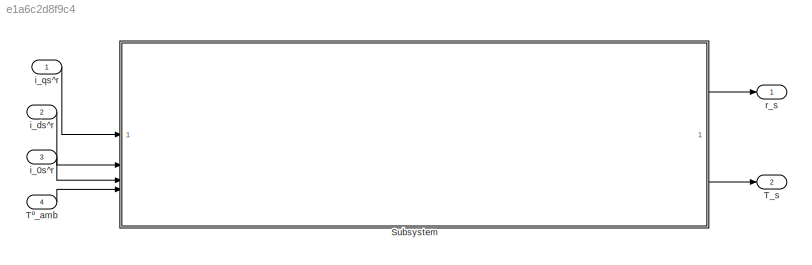
MODEL slx_e1a6c2d8f9c4
KIND model
CONFIG AbsTol = auto
CONFIG EnableMultiTasking = off
CONFIG FixedStep = auto
CONFIG MaxStep = auto
CONFIG MinStep = auto
CONFIG RelTol = 1e-3
CONFIG SampleTimeConstraint = Unconstrained
CONFIG SolverName = VariableStepAuto
CONFIG StartTime = 0.0
CONFIG StopTime = 10.0
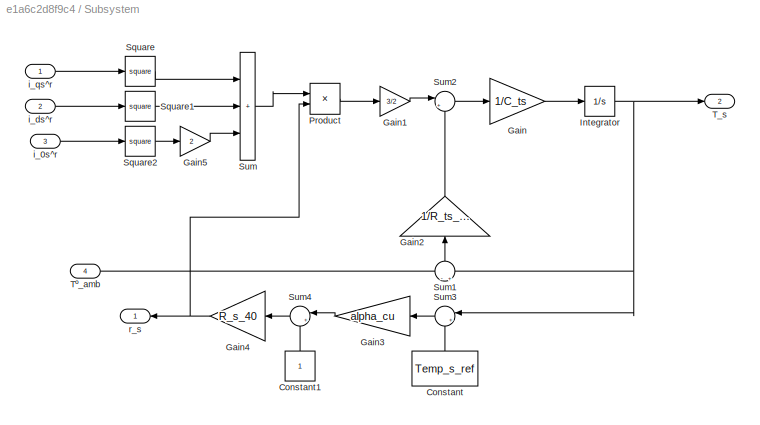
BLOCK [SubSystem] Subsystem
BLOCK [Constant] Subsystem/Constant
  NameLocation = right
  Value = Temp_s_ref
BLOCK [Constant] Subsystem/Constant1
  NameLocation = right
BLOCK [Gain] Subsystem/Gain
  Gain = 1/C_ts
BLOCK [Gain] Subsystem/Gain1
  Gain = 3/2
BLOCK [Gain] Subsystem/Gain2
  Gain = 1/R_ts_amb
  NameLocation = right
BLOCK [Gain] Subsystem/Gain3
  Gain = alpha_cu
  NameLocation = top
BLOCK [Gain] Subsystem/Gain4
  Gain = R_s_40
  NameLocation = top
BLOCK [Gain] Subsystem/Gain5
  Gain = 2
BLOCK [Integrator] Subsystem/Integrator
  InitialCondition = 40
BLOCK [Product] Subsystem/Product
BLOCK [Math] Subsystem/Square
  Operator = square
BLOCK [Math] Subsystem/Square1
  Operator = square
BLOCK [Math] Subsystem/Square2
  Operator = square
BLOCK [Sum] Subsystem/Sum
  IconShape = rectangular
  Inputs = +++
BLOCK [Sum] Subsystem/Sum1
  Inputs = -|+
  NameLocation = right
BLOCK [Sum] Subsystem/Sum2
  Inputs = |+-
BLOCK [Sum] Subsystem/Sum3
  Inputs = |+-
  NameLocation = top
BLOCK [Sum] Subsystem/Sum4
  Inputs = |++
  NameLocation = top
BLOCK [Outport] Subsystem/T_s
  Port = 2
BLOCK [Inport] Subsystem/Tº_amb
  Port = 4
BLOCK [Inport] Subsystem/i_0s^r
  Port = 3
BLOCK [Inport] Subsystem/i_ds^r
  Port = 2
BLOCK [Inport] Subsystem/i_qs^r
BLOCK [Outport] Subsystem/r_s
  NameLocation = top
BLOCK [Outport] T_s
  Port = 2
BLOCK [Inport] Tº_amb
  Port = 4
BLOCK [Inport] i_0s^r
  Port = 3
BLOCK [Inport] i_ds^r
  Port = 2
BLOCK [Inport] i_qs^r
BLOCK [Outport] r_s
LINE Subsystem/Constant1:1 -> Subsystem/Sum4:2
LINE Subsystem/Constant:1 -> Subsystem/Sum3:2
LINE Subsystem/Gain1:1 -> Subsystem/Sum2:1
LINE Subsystem/Gain2:1 -> Subsystem/Sum2:2
LINE Subsystem/Gain3:1 -> Subsystem/Sum4:1
NET Subsystem/Gain4:1 -> Subsystem/Product:2, Subsystem/r_s:1
LINE Subsystem/Gain5:1 -> Subsystem/Sum:3
LINE Subsystem/Gain:1 -> Subsystem/Integrator:1
NET Subsystem/Integrator:1 -> Subsystem/Sum1:2, Subsystem/Sum3:1, Subsystem/T_s:1
LINE Subsystem/Product:1 -> Subsystem/Gain1:1
LINE Subsystem/Square1:1 -> Subsystem/Sum:2
LINE Subsystem/Square2:1 -> Subsystem/Gain5:1
LINE Subsystem/Square:1 -> Subsystem/Sum:1
LINE Subsystem/Sum1:1 -> Subsystem/Gain2:1
LINE Subsystem/Sum2:1 -> Subsystem/Gain:1
LINE Subsystem/Sum3:1 -> Subsystem/Gain3:1
LINE Subsystem/Sum4:1 -> Subsystem/Gain4:1
LINE Subsystem/Sum:1 -> Subsystem/Product:1
LINE Subsystem/Tº_amb:1 -> Subsystem/Sum1:1
LINE Subsystem/i_0s^r:1 -> Subsystem/Square2:1
LINE Subsystem/i_ds^r:1 -> Subsystem/Square1:1
LINE Subsystem/i_qs^r:1 -> Subsystem/Square:1
LINE Subsystem:1 -> r_s:1
LINE Subsystem:2 -> T_s:1
LINE Tº_amb:1 -> Subsystem:4
LINE i_0s^r:1 -> Subsystem:3
LINE i_ds^r:1 -> Subsystem:2
LINE i_qs^r:1 -> Subsystem:1
note: NET lines group one-source signal fan-out (src -> all destinations, sorted); 1:1 wires keep LINE
